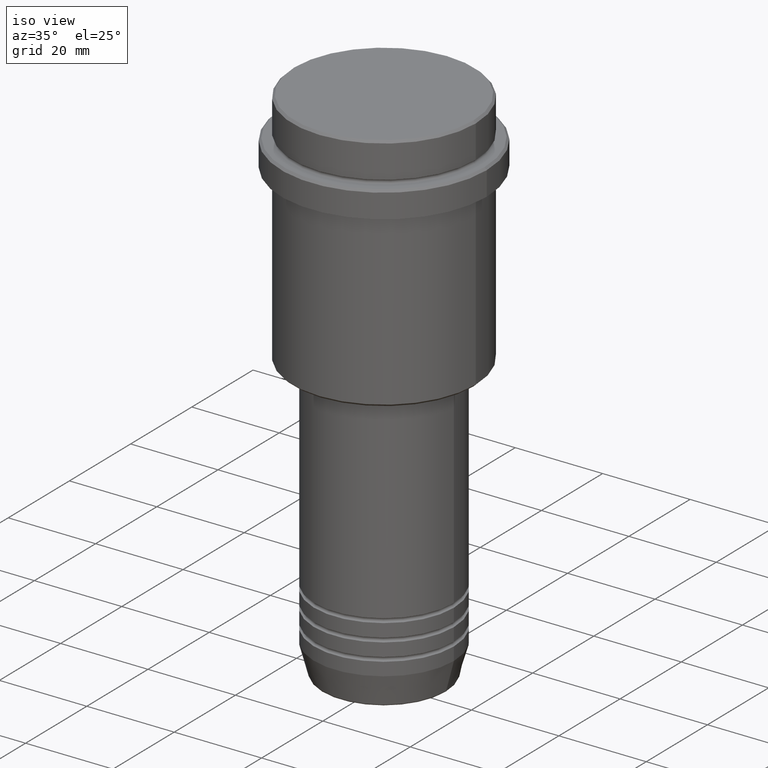
[diagram: clean part render]
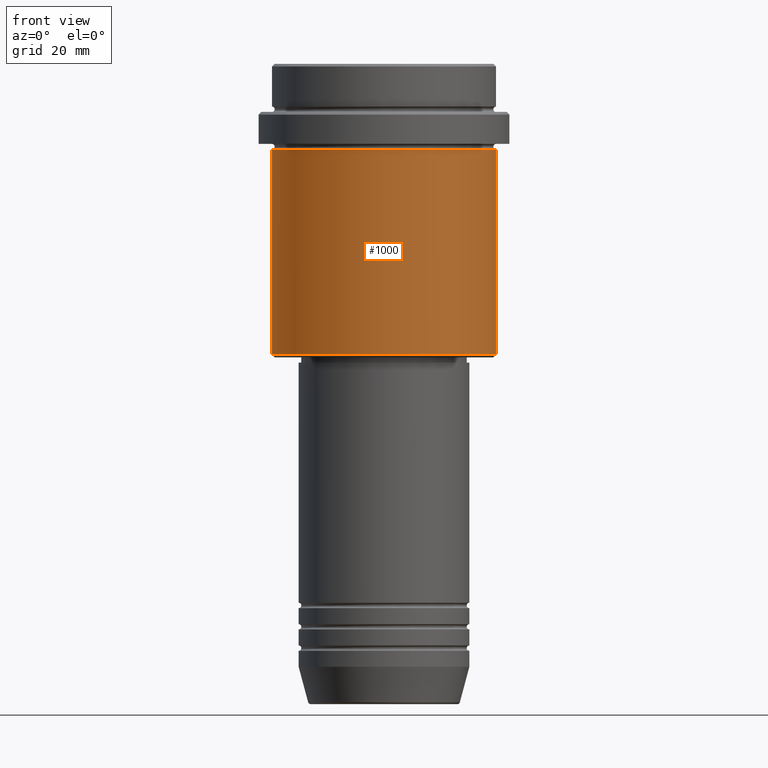
[diagram: tour spotlight — one face highlighted and labeled with its STEP entity id]
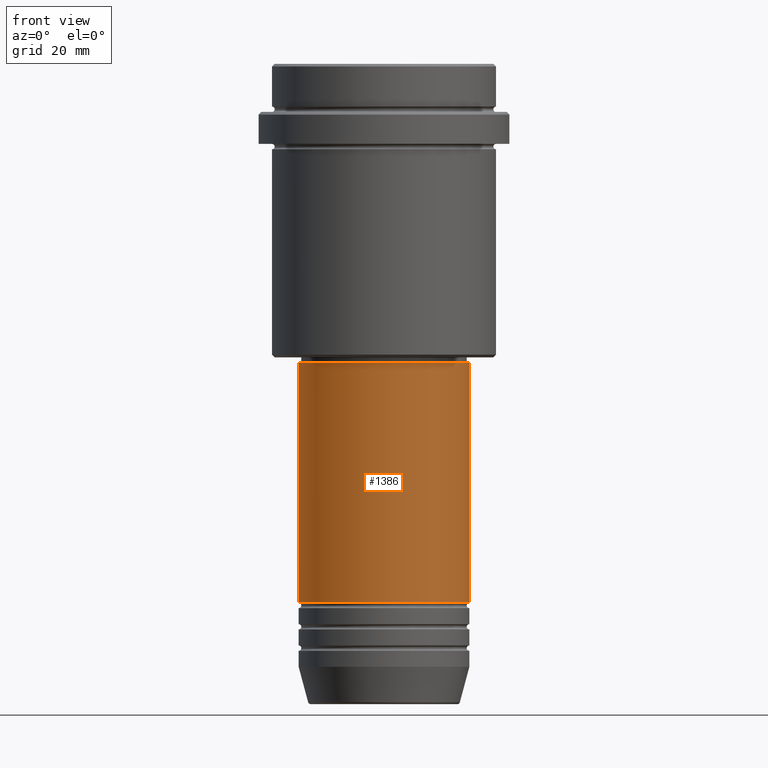
[diagram: tour spotlight — one face highlighted and labeled with its STEP entity id]
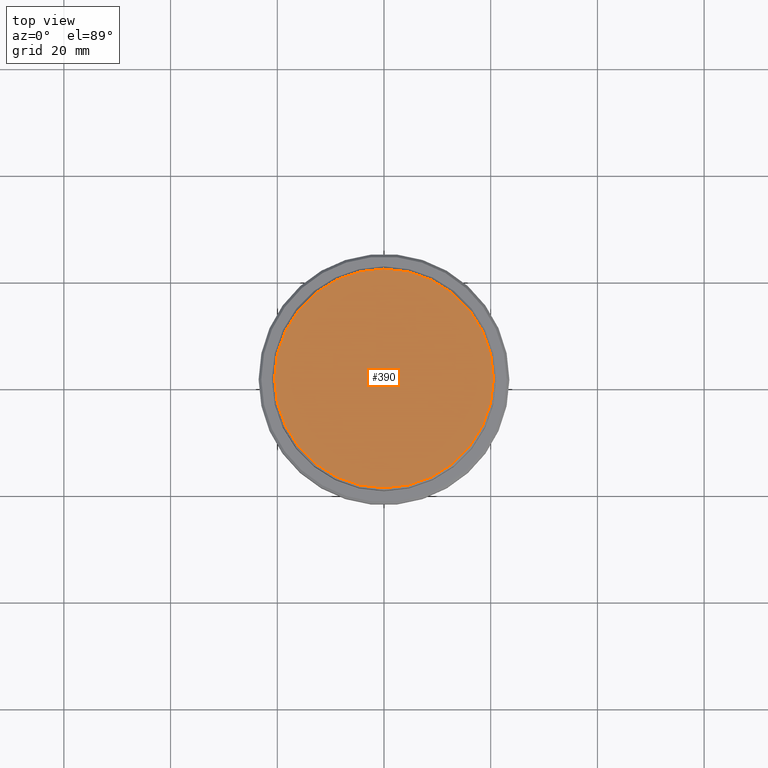
[diagram: tour spotlight — one face highlighted and labeled with its STEP entity id]
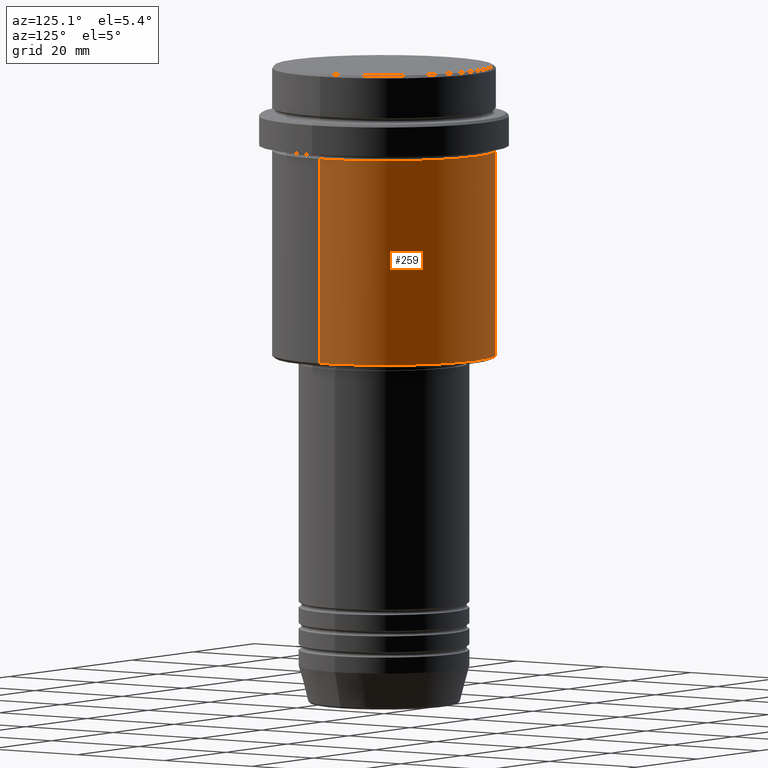
[diagram: tour spotlight — one face highlighted and labeled with its STEP entity id]
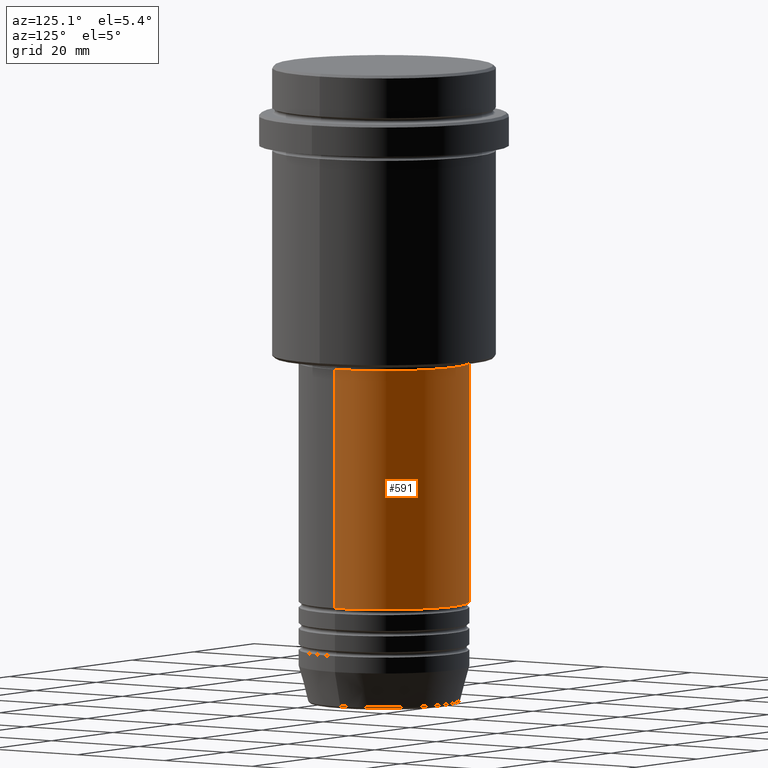
[diagram: tour spotlight — one face highlighted and labeled with its STEP entity id]
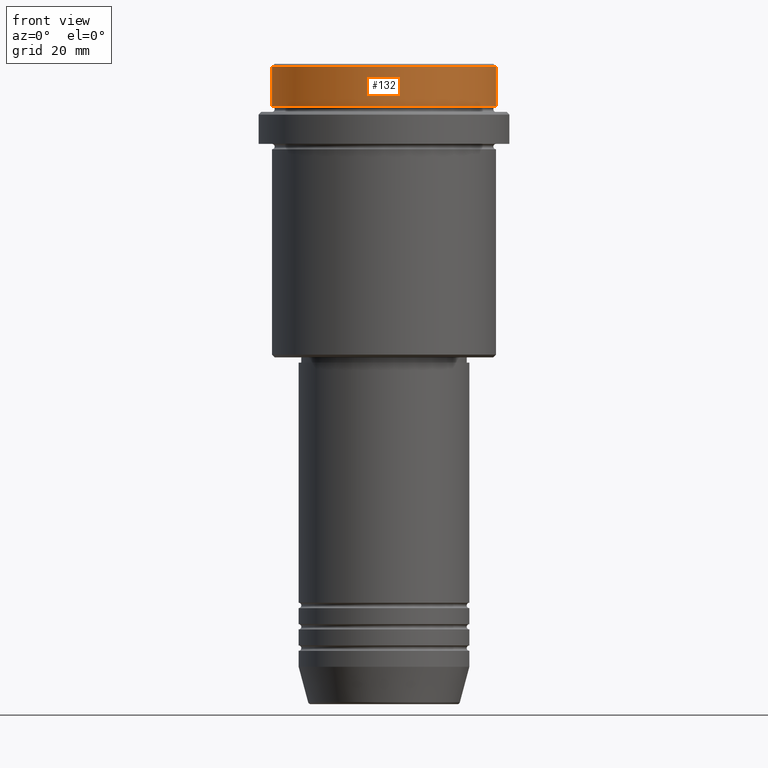
[diagram: tour spotlight — one face highlighted and labeled with its STEP entity id]
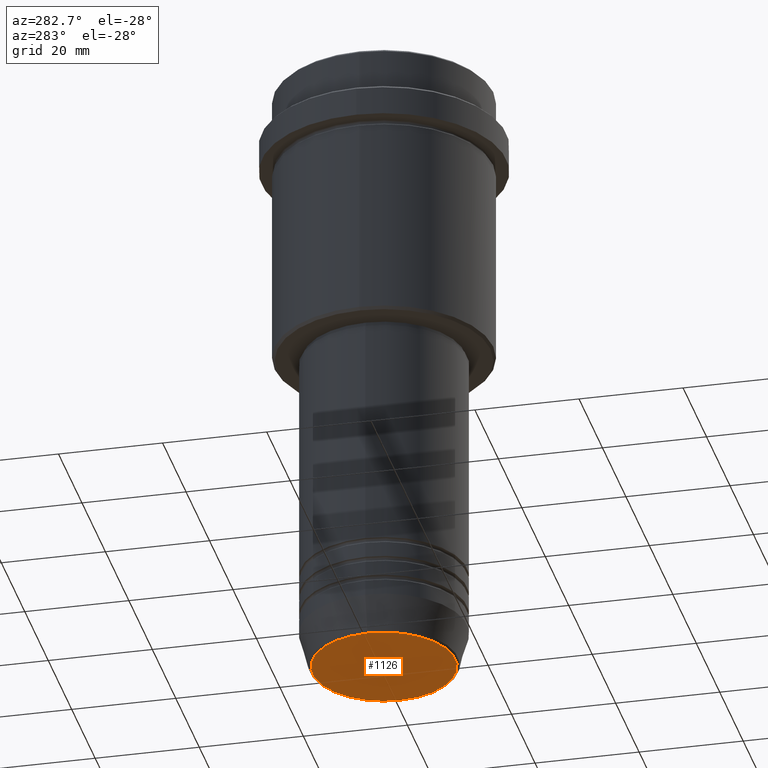
[diagram: tour spotlight — one face highlighted and labeled with its STEP entity id]
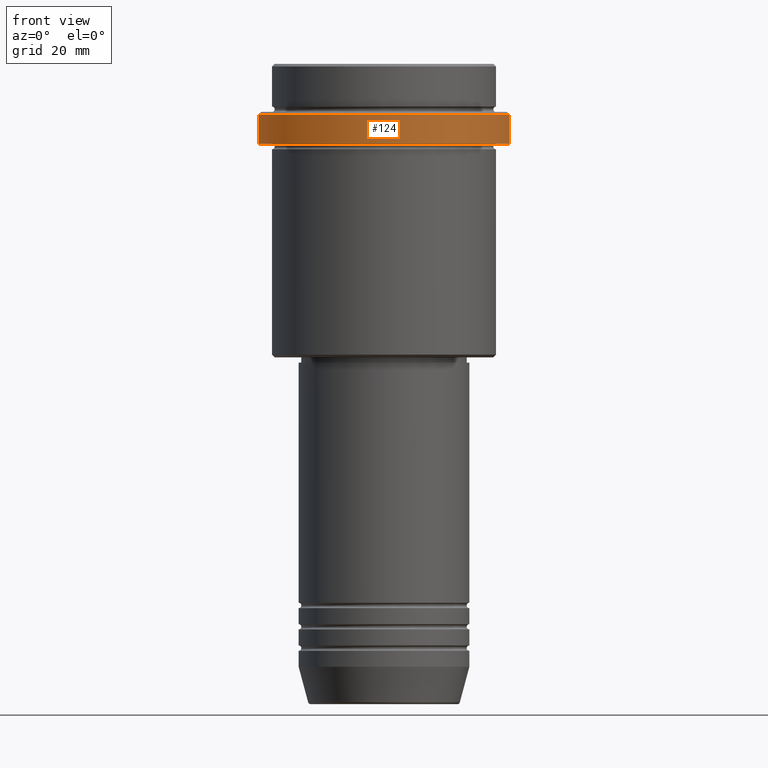
[diagram: tour spotlight — one face highlighted and labeled with its STEP entity id]
A machine part: a face-by-face anatomy tour. The part has 52 B-rep faces; the first image is the clean iso view, then the 8 largest visible faces are spotlighted one at a time (largest first), each with its STEP entity span.

Face 1 — front view, entity #1000. In plain terms, the highlighted cylindrical surface (partial cylindrical patch) has radius 21 mm, axis along (-0, -0, 1).
Definition (entity closure, byte-faithful):
#27 = ORIENTED_EDGE ( 'NONE', *, *, #277, .F. ) ;
#42 = DIRECTION ( 'NONE',  ( -1.000000000000000000, 0.000000000000000000, 0.000000000000000000 ) ) ;
#57 = EDGE_CURVE ( 'NONE', #525, #642, #1208, .T. ) ;
#61 = AXIS2_PLACEMENT_3D ( 'NONE', #209, #1081, #651 ) ;
#109 = CIRCLE ( 'NONE', #61, 21.00000000000000000 ) ;
#148 = DIRECTION ( 'NONE',  ( -0.000000000000000000, -0.000000000000000000, 1.000000000000000000 ) ) ;
#209 = CARTESIAN_POINT ( 'NONE',  ( 0.000000000000000000, 0.000000000000000000, -16.00000000000000355 ) ) ;
#272 = DIRECTION ( 'NONE',  ( -0.000000000000000000, -0.000000000000000000, 1.000000000000000000 ) ) ;
#277 = EDGE_CURVE ( 'NONE', #525, #343, #1254, .T. ) ;
#282 = EDGE_CURVE ( 'NONE', #642, #992, #1021, .T. ) ;
#343 = VERTEX_POINT ( 'NONE', #484 ) ;
#363 = DIRECTION ( 'NONE',  ( -0.000000000000000000, -0.000000000000000000, 1.000000000000000000 ) ) ;
#385 = AXIS2_PLACEMENT_3D ( 'NONE', #692, #148, #42 ) ;
#451 = CYLINDRICAL_SURFACE ( 'NONE', #493, 21.00000000000000000 ) ;
#484 = CARTESIAN_POINT ( 'NONE',  ( -21.00000000000000000, 2.571758278209441661E-15, -16.00000000000000355 ) ) ;
#493 = AXIS2_PLACEMENT_3D ( 'NONE', #1214, #1221, #1108 ) ;
#520 = EDGE_LOOP ( 'NONE', ( #27, #975, #846, #968 ) ) ;
#525 = VERTEX_POINT ( 'NONE', #802 ) ;
#608 = VECTOR ( 'NONE', #363, 1000.000000000000000 ) ;
#642 = VERTEX_POINT ( 'NONE', #1303 ) ;
#651 = DIRECTION ( 'NONE',  ( 1.000000000000000000, 0.000000000000000000, 0.000000000000000000 ) ) ;
#692 = CARTESIAN_POINT ( 'NONE',  ( 0.000000000000000000, 0.000000000000000000, -54.49999999999999289 ) ) ;
#794 = VECTOR ( 'NONE', #272, 1000.000000000000000 ) ;
#802 = CARTESIAN_POINT ( 'NONE',  ( -21.00000000000000000, 2.571758278209441661E-15, -54.49999999999999289 ) ) ;
#846 = ORIENTED_EDGE ( 'NONE', *, *, #282, .T. ) ;
#922 = CARTESIAN_POINT ( 'NONE',  ( 21.00000000000000000, 0.000000000000000000, 0.000000000000000000 ) ) ;
#925 = FACE_OUTER_BOUND ( 'NONE', #520, .T. ) ;
#968 = ORIENTED_EDGE ( 'NONE', *, *, #1165, .F. ) ;
#975 = ORIENTED_EDGE ( 'NONE', *, *, #57, .T. ) ;
#992 = VERTEX_POINT ( 'NONE', #1154 ) ;
#1000 = ADVANCED_FACE ( 'NONE', ( #925 ), #451, .T. ) ;
#1021 = LINE ( 'NONE', #922, #794 ) ;
#1081 = DIRECTION ( 'NONE',  ( -0.000000000000000000, -0.000000000000000000, 1.000000000000000000 ) ) ;
#1108 = DIRECTION ( 'NONE',  ( 1.000000000000000000, 0.000000000000000000, 0.000000000000000000 ) ) ;
#1143 = CARTESIAN_POINT ( 'NONE',  ( -21.00000000000000000, 2.571758278209441661E-15, 0.000000000000000000 ) ) ;
#1154 = CARTESIAN_POINT ( 'NONE',  ( 21.00000000000000000, 0.000000000000000000, -16.00000000000000355 ) ) ;
#1165 = EDGE_CURVE ( 'NONE', #343, #992, #109, .T. ) ;
#1208 = CIRCLE ( 'NONE', #385, 21.00000000000000000 ) ;
#1214 = CARTESIAN_POINT ( 'NONE',  ( 0.000000000000000000, 0.000000000000000000, 0.000000000000000000 ) ) ;
#1221 = DIRECTION ( 'NONE',  ( -0.000000000000000000, -0.000000000000000000, 1.000000000000000000 ) ) ;
#1254 = LINE ( 'NONE', #1143, #608 ) ;
#1303 = CARTESIAN_POINT ( 'NONE',  ( 21.00000000000000000, 0.000000000000000000, -54.49999999999999289 ) ) ;

Face 2 — front view, entity #1386. In plain terms, the highlighted cylindrical surface (partial cylindrical patch) has radius 16 mm, axis along (-0, -0, 1).
Definition (entity closure, byte-faithful):
#33 = EDGE_CURVE ( 'NONE', #145, #857, #359, .T. ) ;
#53 = CARTESIAN_POINT ( 'NONE',  ( 16.00000000000000000, 0.000000000000000000, 0.000000000000000000 ) ) ;
#128 = DIRECTION ( 'NONE',  ( -0.000000000000000000, -0.000000000000000000, 1.000000000000000000 ) ) ;
#145 = VERTEX_POINT ( 'NONE', #1078 ) ;
#203 = DIRECTION ( 'NONE',  ( -0.000000000000000000, -0.000000000000000000, 1.000000000000000000 ) ) ;
#242 = AXIS2_PLACEMENT_3D ( 'NONE', #995, #128, #1097 ) ;
#314 = CARTESIAN_POINT ( 'NONE',  ( -16.00000000000000000, 1.959434878635765131E-15, -100.9999999999999005 ) ) ;
#359 = LINE ( 'NONE', #53, #977 ) ;
#388 = DIRECTION ( 'NONE',  ( -0.000000000000000000, -0.000000000000000000, 1.000000000000000000 ) ) ;
#404 = LINE ( 'NONE', #840, #1186 ) ;
#554 = DIRECTION ( 'NONE',  ( -0.000000000000000000, -0.000000000000000000, 1.000000000000000000 ) ) ;
#564 = CIRCLE ( 'NONE', #242, 16.00000000000000000 ) ;
#573 = DIRECTION ( 'NONE',  ( 1.000000000000000000, 0.000000000000000000, 0.000000000000000000 ) ) ;
#585 = AXIS2_PLACEMENT_3D ( 'NONE', #1373, #203, #1077 ) ;
#607 = CIRCLE ( 'NONE', #1360, 16.00000000000000355 ) ;
#640 = FACE_OUTER_BOUND ( 'NONE', #1404, .T. ) ;
#696 = EDGE_CURVE ( 'NONE', #1110, #145, #564, .T. ) ;
#803 = VERTEX_POINT ( 'NONE', #1315 ) ;
#840 = CARTESIAN_POINT ( 'NONE',  ( -16.00000000000000000, 1.959434878635765131E-15, 0.000000000000000000 ) ) ;
#857 = VERTEX_POINT ( 'NONE', #1194 ) ;
#904 = CARTESIAN_POINT ( 'NONE',  ( 0.000000000000000000, 0.000000000000000000, -56.00000000000002132 ) ) ;
#912 = ORIENTED_EDGE ( 'NONE', *, *, #696, .T. ) ;
#946 = ORIENTED_EDGE ( 'NONE', *, *, #1014, .F. ) ;
#977 = VECTOR ( 'NONE', #1048, 1000.000000000000000 ) ;
#995 = CARTESIAN_POINT ( 'NONE',  ( 0.000000000000000000, 0.000000000000000000, -100.9999999999999005 ) ) ;
#1014 = EDGE_CURVE ( 'NONE', #803, #857, #607, .T. ) ;
#1048 = DIRECTION ( 'NONE',  ( -0.000000000000000000, -0.000000000000000000, 1.000000000000000000 ) ) ;
#1077 = DIRECTION ( 'NONE',  ( 1.000000000000000000, 0.000000000000000000, 0.000000000000000000 ) ) ;
#1078 = CARTESIAN_POINT ( 'NONE',  ( 16.00000000000000000, 0.000000000000000000, -100.9999999999999005 ) ) ;
#1097 = DIRECTION ( 'NONE',  ( 1.000000000000000000, 0.000000000000000000, 0.000000000000000000 ) ) ;
#1110 = VERTEX_POINT ( 'NONE', #314 ) ;
#1125 = ORIENTED_EDGE ( 'NONE', *, *, #33, .T. ) ;
#1186 = VECTOR ( 'NONE', #388, 1000.000000000000000 ) ;
#1194 = CARTESIAN_POINT ( 'NONE',  ( 16.00000000000000355, 0.000000000000000000, -56.00000000000002132 ) ) ;
#1256 = EDGE_CURVE ( 'NONE', #1110, #803, #404, .T. ) ;
#1276 = ORIENTED_EDGE ( 'NONE', *, *, #1256, .F. ) ;
#1315 = CARTESIAN_POINT ( 'NONE',  ( -16.00000000000000355, 1.959434878635765526E-15, -56.00000000000002132 ) ) ;
#1360 = AXIS2_PLACEMENT_3D ( 'NONE', #904, #554, #573 ) ;
#1369 = CYLINDRICAL_SURFACE ( 'NONE', #585, 16.00000000000000000 ) ;
#1373 = CARTESIAN_POINT ( 'NONE',  ( 0.000000000000000000, 0.000000000000000000, 0.000000000000000000 ) ) ;
#1386 = ADVANCED_FACE ( 'NONE', ( #640 ), #1369, .T. ) ;
#1404 = EDGE_LOOP ( 'NONE', ( #1276, #912, #1125, #946 ) ) ;

Face 3 — top view, entity #390. In plain terms, the highlighted planar face has unit normal (0, -0, 1).
Definition (entity closure, byte-faithful):
#86 = EDGE_CURVE ( 'NONE', #986, #1230, #1139, .T. ) ;
#89 = CARTESIAN_POINT ( 'NONE',  ( 0.000000000000000000, 0.000000000000000000, 0.000000000000000000 ) ) ;
#96 = DIRECTION ( 'NONE',  ( 1.000000000000000000, 0.000000000000000000, 0.000000000000000000 ) ) ;
#165 = CARTESIAN_POINT ( 'NONE',  ( 0.000000000000000000, 0.000000000000000000, 0.000000000000000000 ) ) ;
#265 = AXIS2_PLACEMENT_3D ( 'NONE', #89, #1410, #96 ) ;
#290 = AXIS2_PLACEMENT_3D ( 'NONE', #165, #804, #479 ) ;
#338 = CIRCLE ( 'NONE', #265, 20.50000000000001776 ) ;
#370 = PLANE ( 'NONE',  #290 ) ;
#390 = ADVANCED_FACE ( 'NONE', ( #1356 ), #370, .T. ) ;
#469 = CARTESIAN_POINT ( 'NONE',  ( 0.000000000000000000, 0.000000000000000000, 0.000000000000000000 ) ) ;
#479 = DIRECTION ( 'NONE',  ( 1.000000000000000000, 0.000000000000000000, 0.000000000000000000 ) ) ;
#747 = ORIENTED_EDGE ( 'NONE', *, *, #86, .T. ) ;
#804 = DIRECTION ( 'NONE',  ( 0.000000000000000000, -0.000000000000000000, 1.000000000000000000 ) ) ;
#805 = EDGE_LOOP ( 'NONE', ( #747, #1248 ) ) ;
#811 = CARTESIAN_POINT ( 'NONE',  ( 20.50000000000001776, 2.541142108230759057E-15, 0.000000000000000000 ) ) ;
#891 = AXIS2_PLACEMENT_3D ( 'NONE', #469, #1348, #1363 ) ;
#986 = VERTEX_POINT ( 'NONE', #1040 ) ;
#1040 = CARTESIAN_POINT ( 'NONE',  ( -20.50000000000001776, 0.000000000000000000, 0.000000000000000000 ) ) ;
#1139 = CIRCLE ( 'NONE', #891, 20.50000000000001776 ) ;
#1174 = EDGE_CURVE ( 'NONE', #1230, #986, #338, .T. ) ;
#1230 = VERTEX_POINT ( 'NONE', #811 ) ;
#1248 = ORIENTED_EDGE ( 'NONE', *, *, #1174, .T. ) ;
#1348 = DIRECTION ( 'NONE',  ( -0.000000000000000000, -0.000000000000000000, 1.000000000000000000 ) ) ;
#1356 = FACE_OUTER_BOUND ( 'NONE', #805, .T. ) ;
#1363 = DIRECTION ( 'NONE',  ( 1.000000000000000000, 0.000000000000000000, 0.000000000000000000 ) ) ;
#1410 = DIRECTION ( 'NONE',  ( -0.000000000000000000, -0.000000000000000000, 1.000000000000000000 ) ) ;

Face 4 — auxiliary view, entity #259. In plain terms, the highlighted cylindrical surface (partial cylindrical patch) has radius 21 mm, axis along (-0, -0, 1).
Definition (entity closure, byte-faithful):
#25 = ORIENTED_EDGE ( 'NONE', *, *, #394, .F. ) ;
#200 = CIRCLE ( 'NONE', #635, 21.00000000000000000 ) ;
#216 = CARTESIAN_POINT ( 'NONE',  ( 0.000000000000000000, 0.000000000000000000, -54.49999999999999289 ) ) ;
#231 = DIRECTION ( 'NONE',  ( -1.000000000000000000, 0.000000000000000000, 0.000000000000000000 ) ) ;
#259 = ADVANCED_FACE ( 'NONE', ( #870 ), #1196, .T. ) ;
#272 = DIRECTION ( 'NONE',  ( -0.000000000000000000, -0.000000000000000000, 1.000000000000000000 ) ) ;
#277 = EDGE_CURVE ( 'NONE', #525, #343, #1254, .T. ) ;
#282 = EDGE_CURVE ( 'NONE', #642, #992, #1021, .T. ) ;
#320 = DIRECTION ( 'NONE',  ( -0.000000000000000000, -0.000000000000000000, 1.000000000000000000 ) ) ;
#343 = VERTEX_POINT ( 'NONE', #484 ) ;
#363 = DIRECTION ( 'NONE',  ( -0.000000000000000000, -0.000000000000000000, 1.000000000000000000 ) ) ;
#381 = DIRECTION ( 'NONE',  ( 1.000000000000000000, 0.000000000000000000, 0.000000000000000000 ) ) ;
#394 = EDGE_CURVE ( 'NONE', #992, #343, #200, .T. ) ;
#466 = EDGE_LOOP ( 'NONE', ( #1207, #820, #25, #1302 ) ) ;
#484 = CARTESIAN_POINT ( 'NONE',  ( -21.00000000000000000, 2.571758278209441661E-15, -16.00000000000000355 ) ) ;
#489 = DIRECTION ( 'NONE',  ( -0.000000000000000000, -0.000000000000000000, 1.000000000000000000 ) ) ;
#525 = VERTEX_POINT ( 'NONE', #802 ) ;
#608 = VECTOR ( 'NONE', #363, 1000.000000000000000 ) ;
#635 = AXIS2_PLACEMENT_3D ( 'NONE', #809, #489, #381 ) ;
#642 = VERTEX_POINT ( 'NONE', #1303 ) ;
#654 = DIRECTION ( 'NONE',  ( -0.000000000000000000, -0.000000000000000000, 1.000000000000000000 ) ) ;
#691 = EDGE_CURVE ( 'NONE', #642, #525, #1403, .T. ) ;
#794 = VECTOR ( 'NONE', #272, 1000.000000000000000 ) ;
#802 = CARTESIAN_POINT ( 'NONE',  ( -21.00000000000000000, 2.571758278209441661E-15, -54.49999999999999289 ) ) ;
#809 = CARTESIAN_POINT ( 'NONE',  ( 0.000000000000000000, 0.000000000000000000, -16.00000000000000355 ) ) ;
#820 = ORIENTED_EDGE ( 'NONE', *, *, #277, .T. ) ;
#870 = FACE_OUTER_BOUND ( 'NONE', #466, .T. ) ;
#922 = CARTESIAN_POINT ( 'NONE',  ( 21.00000000000000000, 0.000000000000000000, 0.000000000000000000 ) ) ;
#992 = VERTEX_POINT ( 'NONE', #1154 ) ;
#1021 = LINE ( 'NONE', #922, #794 ) ;
#1050 = AXIS2_PLACEMENT_3D ( 'NONE', #1298, #320, #1133 ) ;
#1133 = DIRECTION ( 'NONE',  ( 1.000000000000000000, 0.000000000000000000, 0.000000000000000000 ) ) ;
#1143 = CARTESIAN_POINT ( 'NONE',  ( -21.00000000000000000, 2.571758278209441661E-15, 0.000000000000000000 ) ) ;
#1154 = CARTESIAN_POINT ( 'NONE',  ( 21.00000000000000000, 0.000000000000000000, -16.00000000000000355 ) ) ;
#1196 = CYLINDRICAL_SURFACE ( 'NONE', #1050, 21.00000000000000000 ) ;
#1207 = ORIENTED_EDGE ( 'NONE', *, *, #691, .T. ) ;
#1232 = AXIS2_PLACEMENT_3D ( 'NONE', #216, #654, #231 ) ;
#1254 = LINE ( 'NONE', #1143, #608 ) ;
#1298 = CARTESIAN_POINT ( 'NONE',  ( 0.000000000000000000, 0.000000000000000000, 0.000000000000000000 ) ) ;
#1302 = ORIENTED_EDGE ( 'NONE', *, *, #282, .F. ) ;
#1303 = CARTESIAN_POINT ( 'NONE',  ( 21.00000000000000000, 0.000000000000000000, -54.49999999999999289 ) ) ;
#1403 = CIRCLE ( 'NONE', #1232, 21.00000000000000000 ) ;

Face 5 — auxiliary view, entity #591. In plain terms, the highlighted cylindrical surface (partial cylindrical patch) has radius 16 mm, axis along (-0, -0, 1).
Definition (entity closure, byte-faithful):
#20 = AXIS2_PLACEMENT_3D ( 'NONE', #740, #852, #419 ) ;
#33 = EDGE_CURVE ( 'NONE', #145, #857, #359, .T. ) ;
#53 = CARTESIAN_POINT ( 'NONE',  ( 16.00000000000000000, 0.000000000000000000, 0.000000000000000000 ) ) ;
#145 = VERTEX_POINT ( 'NONE', #1078 ) ;
#192 = ORIENTED_EDGE ( 'NONE', *, *, #33, .F. ) ;
#194 = CYLINDRICAL_SURFACE ( 'NONE', #980, 16.00000000000000000 ) ;
#239 = EDGE_CURVE ( 'NONE', #857, #803, #864, .T. ) ;
#314 = CARTESIAN_POINT ( 'NONE',  ( -16.00000000000000000, 1.959434878635765131E-15, -100.9999999999999005 ) ) ;
#359 = LINE ( 'NONE', #53, #977 ) ;
#388 = DIRECTION ( 'NONE',  ( -0.000000000000000000, -0.000000000000000000, 1.000000000000000000 ) ) ;
#389 = AXIS2_PLACEMENT_3D ( 'NONE', #677, #463, #792 ) ;
#404 = LINE ( 'NONE', #840, #1186 ) ;
#410 = ORIENTED_EDGE ( 'NONE', *, *, #239, .F. ) ;
#419 = DIRECTION ( 'NONE',  ( 1.000000000000000000, 0.000000000000000000, 0.000000000000000000 ) ) ;
#434 = EDGE_LOOP ( 'NONE', ( #621, #1102, #410, #192 ) ) ;
#463 = DIRECTION ( 'NONE',  ( -0.000000000000000000, -0.000000000000000000, 1.000000000000000000 ) ) ;
#495 = EDGE_CURVE ( 'NONE', #145, #1110, #799, .T. ) ;
#591 = ADVANCED_FACE ( 'NONE', ( #744 ), #194, .T. ) ;
#621 = ORIENTED_EDGE ( 'NONE', *, *, #495, .T. ) ;
#632 = CARTESIAN_POINT ( 'NONE',  ( 0.000000000000000000, 0.000000000000000000, 0.000000000000000000 ) ) ;
#677 = CARTESIAN_POINT ( 'NONE',  ( 0.000000000000000000, 0.000000000000000000, -100.9999999999999005 ) ) ;
#740 = CARTESIAN_POINT ( 'NONE',  ( 0.000000000000000000, 0.000000000000000000, -56.00000000000002132 ) ) ;
#744 = FACE_OUTER_BOUND ( 'NONE', #434, .T. ) ;
#780 = DIRECTION ( 'NONE',  ( 1.000000000000000000, 0.000000000000000000, 0.000000000000000000 ) ) ;
#792 = DIRECTION ( 'NONE',  ( 1.000000000000000000, 0.000000000000000000, 0.000000000000000000 ) ) ;
#799 = CIRCLE ( 'NONE', #389, 16.00000000000000000 ) ;
#803 = VERTEX_POINT ( 'NONE', #1315 ) ;
#840 = CARTESIAN_POINT ( 'NONE',  ( -16.00000000000000000, 1.959434878635765131E-15, 0.000000000000000000 ) ) ;
#852 = DIRECTION ( 'NONE',  ( -0.000000000000000000, -0.000000000000000000, 1.000000000000000000 ) ) ;
#857 = VERTEX_POINT ( 'NONE', #1194 ) ;
#864 = CIRCLE ( 'NONE', #20, 16.00000000000000355 ) ;
#977 = VECTOR ( 'NONE', #1048, 1000.000000000000000 ) ;
#980 = AXIS2_PLACEMENT_3D ( 'NONE', #632, #1199, #780 ) ;
#1048 = DIRECTION ( 'NONE',  ( -0.000000000000000000, -0.000000000000000000, 1.000000000000000000 ) ) ;
#1078 = CARTESIAN_POINT ( 'NONE',  ( 16.00000000000000000, 0.000000000000000000, -100.9999999999999005 ) ) ;
#1102 = ORIENTED_EDGE ( 'NONE', *, *, #1256, .T. ) ;
#1110 = VERTEX_POINT ( 'NONE', #314 ) ;
#1186 = VECTOR ( 'NONE', #388, 1000.000000000000000 ) ;
#1194 = CARTESIAN_POINT ( 'NONE',  ( 16.00000000000000355, 0.000000000000000000, -56.00000000000002132 ) ) ;
#1199 = DIRECTION ( 'NONE',  ( -0.000000000000000000, -0.000000000000000000, 1.000000000000000000 ) ) ;
#1256 = EDGE_CURVE ( 'NONE', #1110, #803, #404, .T. ) ;
#1315 = CARTESIAN_POINT ( 'NONE',  ( -16.00000000000000355, 1.959434878635765526E-15, -56.00000000000002132 ) ) ;

Face 6 — front view, entity #132. In plain terms, the highlighted cylindrical surface (partial cylindrical patch) has radius 21 mm, axis along (-0, -0, 1).
Definition (entity closure, byte-faithful):
#63 = VECTOR ( 'NONE', #295, 1000.000000000000000 ) ;
#70 = CARTESIAN_POINT ( 'NONE',  ( -21.00000000000000000, 2.571758278209441661E-15, 0.000000000000000000 ) ) ;
#85 = AXIS2_PLACEMENT_3D ( 'NONE', #1279, #624, #1083 ) ;
#101 = DIRECTION ( 'NONE',  ( -0.000000000000000000, -0.000000000000000000, 1.000000000000000000 ) ) ;
#132 = ADVANCED_FACE ( 'NONE', ( #1391 ), #524, .T. ) ;
#149 = LINE ( 'NONE', #1029, #1339 ) ;
#172 = VERTEX_POINT ( 'NONE', #1070 ) ;
#295 = DIRECTION ( 'NONE',  ( -0.000000000000000000, -0.000000000000000000, 1.000000000000000000 ) ) ;
#308 = CIRCLE ( 'NONE', #1381, 21.00000000000000000 ) ;
#322 = VERTEX_POINT ( 'NONE', #704 ) ;
#368 = VERTEX_POINT ( 'NONE', #926 ) ;
#375 = DIRECTION ( 'NONE',  ( 1.000000000000000000, 0.000000000000000000, 0.000000000000000000 ) ) ;
#397 = CARTESIAN_POINT ( 'NONE',  ( 0.000000000000000000, 0.000000000000000000, -0.4999999999999831246 ) ) ;
#420 = VERTEX_POINT ( 'NONE', #1413 ) ;
#524 = CYLINDRICAL_SURFACE ( 'NONE', #85, 21.00000000000000000 ) ;
#592 = DIRECTION ( 'NONE',  ( -0.000000000000000000, -0.000000000000000000, 1.000000000000000000 ) ) ;
#624 = DIRECTION ( 'NONE',  ( -0.000000000000000000, -0.000000000000000000, 1.000000000000000000 ) ) ;
#681 = ORIENTED_EDGE ( 'NONE', *, *, #886, .T. ) ;
#704 = CARTESIAN_POINT ( 'NONE',  ( -21.00000000000000000, 2.571758278209441661E-15, -7.999999999999998224 ) ) ;
#729 = DIRECTION ( 'NONE',  ( 1.000000000000000000, 0.000000000000000000, 0.000000000000000000 ) ) ;
#763 = EDGE_CURVE ( 'NONE', #172, #368, #1091, .T. ) ;
#842 = LINE ( 'NONE', #70, #63 ) ;
#878 = EDGE_CURVE ( 'NONE', #322, #420, #308, .T. ) ;
#886 = EDGE_CURVE ( 'NONE', #420, #172, #149, .T. ) ;
#926 = CARTESIAN_POINT ( 'NONE',  ( -21.00000000000000000, 2.571758278209441661E-15, -0.4999999999999831246 ) ) ;
#1029 = CARTESIAN_POINT ( 'NONE',  ( 21.00000000000000000, 0.000000000000000000, 0.000000000000000000 ) ) ;
#1044 = DIRECTION ( 'NONE',  ( 0.000000000000000000, 0.000000000000000000, -1.000000000000000000 ) ) ;
#1047 = AXIS2_PLACEMENT_3D ( 'NONE', #397, #1044, #729 ) ;
#1070 = CARTESIAN_POINT ( 'NONE',  ( 21.00000000000000000, 0.000000000000000000, -0.4999999999999831246 ) ) ;
#1083 = DIRECTION ( 'NONE',  ( 1.000000000000000000, 0.000000000000000000, 0.000000000000000000 ) ) ;
#1085 = CARTESIAN_POINT ( 'NONE',  ( 0.000000000000000000, 0.000000000000000000, -7.999999999999998224 ) ) ;
#1091 = CIRCLE ( 'NONE', #1047, 21.00000000000000000 ) ;
#1169 = ORIENTED_EDGE ( 'NONE', *, *, #878, .T. ) ;
#1235 = EDGE_LOOP ( 'NONE', ( #1309, #1169, #681, #1282 ) ) ;
#1279 = CARTESIAN_POINT ( 'NONE',  ( 0.000000000000000000, 0.000000000000000000, 0.000000000000000000 ) ) ;
#1282 = ORIENTED_EDGE ( 'NONE', *, *, #763, .T. ) ;
#1309 = ORIENTED_EDGE ( 'NONE', *, *, #1400, .F. ) ;
#1339 = VECTOR ( 'NONE', #592, 1000.000000000000000 ) ;
#1381 = AXIS2_PLACEMENT_3D ( 'NONE', #1085, #101, #375 ) ;
#1391 = FACE_OUTER_BOUND ( 'NONE', #1235, .T. ) ;
#1400 = EDGE_CURVE ( 'NONE', #322, #368, #842, .T. ) ;
#1413 = CARTESIAN_POINT ( 'NONE',  ( 21.00000000000000000, 0.000000000000000000, -7.999999999999998224 ) ) ;

Face 7 — auxiliary view, entity #1126. In plain terms, the highlighted planar face has unit normal (0, -0, 1).
Definition (entity closure, byte-faithful):
#5 = DIRECTION ( 'NONE',  ( 0.000000000000000000, -0.000000000000000000, 1.000000000000000000 ) ) ;
#141 = CARTESIAN_POINT ( 'NONE',  ( 0.000000000000000000, 0.000000000000000000, -120.0000000000000000 ) ) ;
#236 = DIRECTION ( 'NONE',  ( 0.000000000000000000, 0.000000000000000000, -1.000000000000000000 ) ) ;
#357 = DIRECTION ( 'NONE',  ( 1.000000000000000000, 0.000000000000000000, 0.000000000000000000 ) ) ;
#431 = CIRCLE ( 'NONE', #1401, 13.74069215899265828 ) ;
#453 = ORIENTED_EDGE ( 'NONE', *, *, #1071, .T. ) ;
#486 = EDGE_CURVE ( 'NONE', #884, #1197, #431, .T. ) ;
#644 = CARTESIAN_POINT ( 'NONE',  ( -13.74069215899265828, 1.712322416342415986E-15, -120.0000000000000000 ) ) ;
#672 = DIRECTION ( 'NONE',  ( 1.000000000000000000, 0.000000000000000000, 0.000000000000000000 ) ) ;
#700 = CARTESIAN_POINT ( 'NONE',  ( 0.000000000000000000, 0.000000000000000000, -120.0000000000000000 ) ) ;
#715 = DIRECTION ( 'NONE',  ( 0.000000000000000000, 0.000000000000000000, -1.000000000000000000 ) ) ;
#774 = AXIS2_PLACEMENT_3D ( 'NONE', #141, #5, #672 ) ;
#837 = CIRCLE ( 'NONE', #1405, 13.74069215899265828 ) ;
#884 = VERTEX_POINT ( 'NONE', #1142 ) ;
#1031 = EDGE_LOOP ( 'NONE', ( #1140, #453 ) ) ;
#1071 = EDGE_CURVE ( 'NONE', #1197, #884, #837, .T. ) ;
#1126 = ADVANCED_FACE ( 'NONE', ( #1200 ), #1219, .F. ) ;
#1140 = ORIENTED_EDGE ( 'NONE', *, *, #486, .T. ) ;
#1141 = DIRECTION ( 'NONE',  ( 1.000000000000000000, 0.000000000000000000, 0.000000000000000000 ) ) ;
#1142 = CARTESIAN_POINT ( 'NONE',  ( 13.74069215899265828, 0.000000000000000000, -120.0000000000000000 ) ) ;
#1197 = VERTEX_POINT ( 'NONE', #644 ) ;
#1200 = FACE_OUTER_BOUND ( 'NONE', #1031, .T. ) ;
#1219 = PLANE ( 'NONE',  #774 ) ;
#1225 = CARTESIAN_POINT ( 'NONE',  ( 0.000000000000000000, 0.000000000000000000, -120.0000000000000000 ) ) ;
#1401 = AXIS2_PLACEMENT_3D ( 'NONE', #1225, #236, #357 ) ;
#1405 = AXIS2_PLACEMENT_3D ( 'NONE', #700, #715, #1141 ) ;

Face 8 — front view, entity #124. In plain terms, the highlighted cylindrical surface (partial cylindrical patch) has radius 23.5 mm, axis along (-0, -0, 1).
Definition (entity closure, byte-faithful):
#104 = DIRECTION ( 'NONE',  ( 1.000000000000000000, 0.000000000000000000, 0.000000000000000000 ) ) ;
#124 = ADVANCED_FACE ( 'NONE', ( #833 ), #1370, .T. ) ;
#190 = CARTESIAN_POINT ( 'NONE',  ( 0.000000000000000000, 0.000000000000000000, 0.000000000000000000 ) ) ;
#204 = DIRECTION ( 'NONE',  ( -0.000000000000000000, -0.000000000000000000, 1.000000000000000000 ) ) ;
#208 = CARTESIAN_POINT ( 'NONE',  ( -23.50000000000000000, 2.877919977996280320E-15, 0.000000000000000000 ) ) ;
#256 = CARTESIAN_POINT ( 'NONE',  ( 23.50000000000000355, 0.000000000000000000, -15.00000000000000000 ) ) ;
#273 = VERTEX_POINT ( 'NONE', #1035 ) ;
#369 = EDGE_CURVE ( 'NONE', #923, #273, #1046, .T. ) ;
#387 = VECTOR ( 'NONE', #827, 1000.000000000000000 ) ;
#430 = AXIS2_PLACEMENT_3D ( 'NONE', #1119, #646, #104 ) ;
#443 = CARTESIAN_POINT ( 'NONE',  ( -23.50000000000000711, 2.877919977996281109E-15, -15.00000000000000000 ) ) ;
#464 = EDGE_LOOP ( 'NONE', ( #1227, #1387, #686, #1042 ) ) ;
#533 = LINE ( 'NONE', #208, #1204 ) ;
#579 = DIRECTION ( 'NONE',  ( 1.000000000000000000, 0.000000000000000000, 0.000000000000000000 ) ) ;
#614 = DIRECTION ( 'NONE',  ( 1.000000000000000000, 0.000000000000000000, 0.000000000000000000 ) ) ;
#643 = DIRECTION ( 'NONE',  ( -0.000000000000000000, -0.000000000000000000, 1.000000000000000000 ) ) ;
#646 = DIRECTION ( 'NONE',  ( -0.000000000000000000, -0.000000000000000000, 1.000000000000000000 ) ) ;
#682 = CIRCLE ( 'NONE', #430, 23.50000000000000355 ) ;
#686 = ORIENTED_EDGE ( 'NONE', *, *, #1415, .T. ) ;
#711 = VERTEX_POINT ( 'NONE', #443 ) ;
#739 = LINE ( 'NONE', #1173, #387 ) ;
#827 = DIRECTION ( 'NONE',  ( -0.000000000000000000, -0.000000000000000000, 1.000000000000000000 ) ) ;
#833 = FACE_OUTER_BOUND ( 'NONE', #464, .T. ) ;
#858 = AXIS2_PLACEMENT_3D ( 'NONE', #1336, #1346, #579 ) ;
#872 = EDGE_CURVE ( 'NONE', #711, #273, #533, .T. ) ;
#923 = VERTEX_POINT ( 'NONE', #1222 ) ;
#941 = VERTEX_POINT ( 'NONE', #256 ) ;
#1035 = CARTESIAN_POINT ( 'NONE',  ( -23.50000000000000000, 2.877919977996280320E-15, -9.500000000000026645 ) ) ;
#1042 = ORIENTED_EDGE ( 'NONE', *, *, #369, .T. ) ;
#1046 = CIRCLE ( 'NONE', #858, 23.50000000000000000 ) ;
#1096 = AXIS2_PLACEMENT_3D ( 'NONE', #190, #204, #614 ) ;
#1119 = CARTESIAN_POINT ( 'NONE',  ( 0.000000000000000000, 0.000000000000000000, -15.00000000000000000 ) ) ;
#1173 = CARTESIAN_POINT ( 'NONE',  ( 23.50000000000000000, 0.000000000000000000, 0.000000000000000000 ) ) ;
#1204 = VECTOR ( 'NONE', #643, 1000.000000000000000 ) ;
#1222 = CARTESIAN_POINT ( 'NONE',  ( 23.50000000000000000, 0.000000000000000000, -9.500000000000026645 ) ) ;
#1227 = ORIENTED_EDGE ( 'NONE', *, *, #872, .F. ) ;
#1307 = EDGE_CURVE ( 'NONE', #711, #941, #682, .T. ) ;
#1336 = CARTESIAN_POINT ( 'NONE',  ( 0.000000000000000000, 0.000000000000000000, -9.500000000000026645 ) ) ;
#1346 = DIRECTION ( 'NONE',  ( 0.000000000000000000, 0.000000000000000000, -1.000000000000000000 ) ) ;
#1370 = CYLINDRICAL_SURFACE ( 'NONE', #1096, 23.50000000000000000 ) ;
#1387 = ORIENTED_EDGE ( 'NONE', *, *, #1307, .T. ) ;
#1415 = EDGE_CURVE ( 'NONE', #941, #923, #739, .T. ) ;